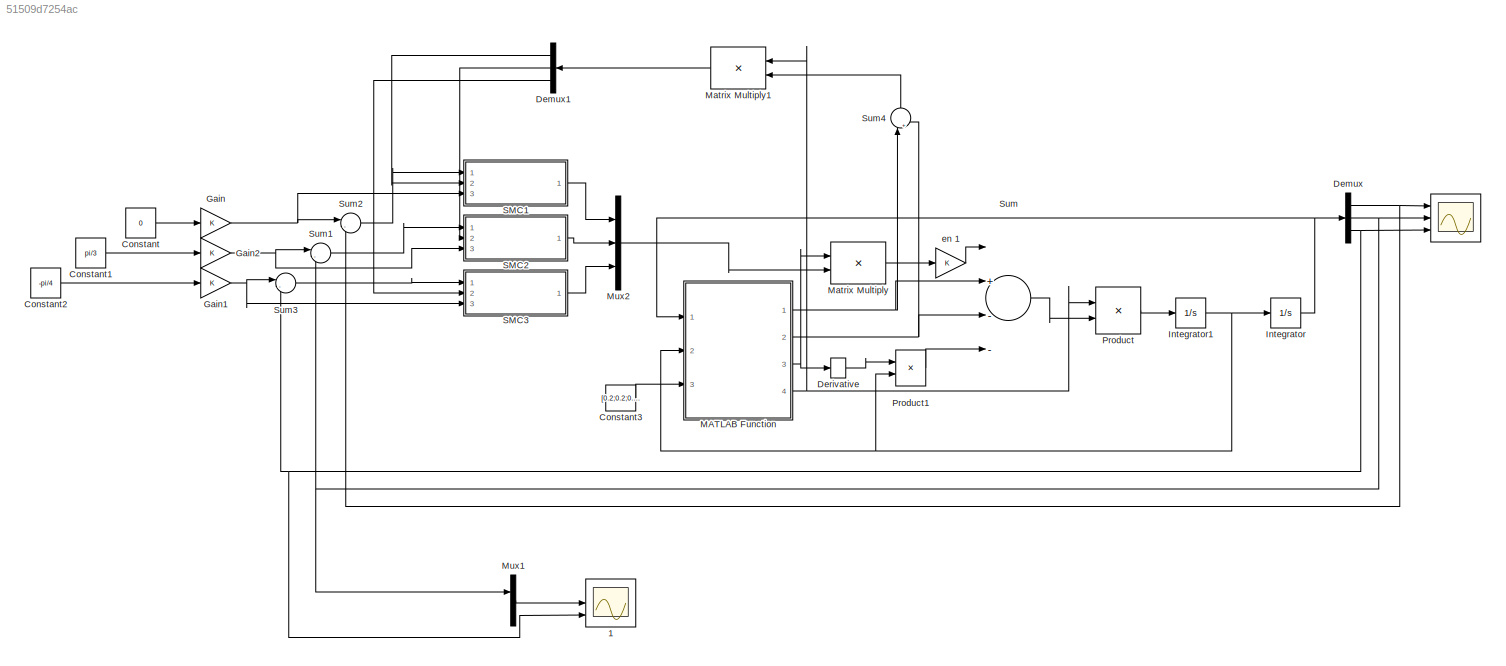
MODEL slx_51509d7254ac
KIND model
CONFIG AbsTol = auto
CONFIG EnableMultiTasking = off
CONFIG FixedStep = 0.01
CONFIG MaxStep = auto
CONFIG MinStep = auto
CONFIG RelTol = 1e-3
CONFIG SampleTimeConstraint = Unconstrained
CONFIG Solver = FixedStepAuto
CONFIG SolverName = FixedStepAuto
CONFIG StartTime = 0.0
CONFIG StopTime = 10.0
BLOCK [Scope]  
  NumInputPorts = 3
  Ports = [3]
  ScopeSpecificationString = Simulink.scopes.TimeScopeBlockCfg('CurrentConfiguration', extmgr.ConfigurationSet(extmgr.Configuration('Core','General UI',true),extmgr.Configuration('Core','Source UI',true),extmgr.Configuration('Sources','WiredSimulink',true,'DataLoggingVariableName','ScopeData1','DataLoggingSaveFormat','Structure'),extmgr.Configuration('Visuals','Time Domain',true,'SerializedDisplays',{struct('MinYLimReal','-1....<+2752ch>
BLOCK [Scope]  1
  NumInputPorts = 3
  Ports = [3]
  ScopeSpecificationString = Simulink.scopes.TimeScopeBlockCfg('CurrentConfiguration', extmgr.ConfigurationSet(extmgr.Configuration('Core','General UI',true),extmgr.Configuration('Core','Source UI',true),extmgr.Configuration('Sources','WiredSimulink',true,'DataLogging',true,'DataLoggingVariableName','ScopeData1','DataLoggingSaveFormat','Structure'),extmgr.Configuration('Visuals','Time Domain',true,'SerializedDisplays',{struct...<+2784ch>
BLOCK [Constant] Constant
  Value = 0
BLOCK [Constant] Constant1
  Value = pi/3
BLOCK [Constant] Constant2
  Value = -pi/4
BLOCK [Constant] Constant3
  Value = [0.2;0.2;0.2]
BLOCK [Demux] Demux
  DisplayOption = bar
  Outputs = 3
  Ports = [1, 3]
BLOCK [Demux] Demux1
  DisplayOption = bar
  Outputs = 3
  Ports = [1, 3]
BLOCK [Derivative] Derivative
BLOCK [Gain] Gain
  OutDataTypeStr = Inherit: Inherit via internal rule
  ParamDataTypeStr = Inherit: Inherit via internal rule
  SaturateOnIntegerOverflow = off
BLOCK [Gain] Gain1
  OutDataTypeStr = Inherit: Inherit via internal rule
  ParamDataTypeStr = Inherit: Inherit via internal rule
  SaturateOnIntegerOverflow = off
BLOCK [Gain] Gain2
  OutDataTypeStr = Inherit: Inherit via internal rule
  ParamDataTypeStr = Inherit: Inherit via internal rule
  SaturateOnIntegerOverflow = off
BLOCK [Integrator] Integrator
  InitialCondition = [0;0;0]
  Ports = [1, 1]
BLOCK [Integrator] Integrator1
  InitialCondition = [0;0;0]
  Ports = [1, 1]
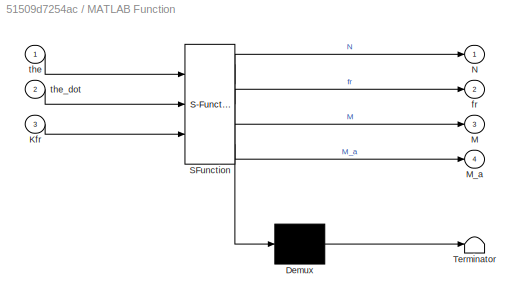
BLOCK [SubSystem] MATLAB Function
  ErrorFcn = Stateflow.Translate.translate
  PermitHierarchicalResolution = ExplicitOnly
  Ports = [3, 4]
  RequestExecContextInheritance = off
  SFBlockType = MATLAB Function
  TreatAsAtomicUnit = on
  Variant = off
BLOCK [Demux] MATLAB Function/ Demux 
  Outputs = 1
  Ports = [1, 1]
BLOCK [S-Function] MATLAB Function/ SFunction 
  EnableBusSupport = on
  FunctionName = sf_sfun
  PortCounts = [3 5]
  Ports = [3, 5]
  SFcnIsStateOwnerBlock = off
  SFunctionDeploymentMode = off
  Tag = Stateflow S-Function Msctest2 2
BLOCK [Terminator] MATLAB Function/ Terminator 
BLOCK [Inport] MATLAB Function/Kfr
  IconDisplay = Port number
  Port = 3
BLOCK [Outport] MATLAB Function/M
  IconDisplay = Port number
  Port = 3
BLOCK [Outport] MATLAB Function/M_a
  IconDisplay = Port number
  Port = 4
BLOCK [Outport] MATLAB Function/N
  IconDisplay = Port number
BLOCK [Outport] MATLAB Function/fr
  IconDisplay = Port number
  Port = 2
BLOCK [Inport] MATLAB Function/the
  IconDisplay = Port number
BLOCK [Inport] MATLAB Function/the_dot
  IconDisplay = Port number
  Port = 2
BLOCK [Product] Matrix Multiply
  InputSameDT = off
  Multiplication = Matrix(*)
  OutDataTypeStr = Inherit: Inherit via internal rule
  Ports = [2, 1]
  RndMeth = Floor
  SaturateOnIntegerOverflow = off
BLOCK [Product] Matrix Multiply1
  InputSameDT = off
  Multiplication = Matrix(*)
  OutDataTypeStr = Inherit: Inherit via internal rule
  Ports = [2, 1]
  RndMeth = Floor
  SaturateOnIntegerOverflow = off
BLOCK [Mux] Mux1
  DisplayOption = bar
  Inputs = 2
  Ports = [2, 1]
BLOCK [Mux] Mux2
  DisplayOption = bar
  Inputs = 3
  Ports = [3, 1]
BLOCK [Product] Product
  InputSameDT = off
  Multiplication = Matrix(*)
  OutDataTypeStr = Inherit: Inherit via internal rule
  Ports = [2, 1]
  RndMeth = Floor
  SaturateOnIntegerOverflow = off
BLOCK [Product] Product1
  InputSameDT = off
  Multiplication = Matrix(*)
  OutDataTypeStr = Inherit: Inherit via internal rule
  Ports = [2, 1]
  RndMeth = Floor
  SaturateOnIntegerOverflow = off
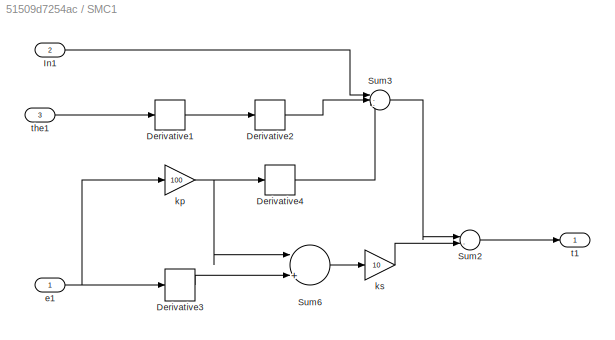
BLOCK [SubSystem] SMC1 
  Ports = [3, 1]
  RequestExecContextInheritance = off
  Variant = off
BLOCK [Derivative] SMC1 /Derivative1
BLOCK [Derivative] SMC1 /Derivative2
BLOCK [Derivative] SMC1 /Derivative3
BLOCK [Derivative] SMC1 /Derivative4
BLOCK [Inport] SMC1 /In1
  IconDisplay = Port number
  Port = 2
BLOCK [Sum] SMC1 /Sum2
  IconShape = round
  InputSameDT = off
  Inputs = |--
  OutDataTypeStr = Inherit: Inherit via internal rule
  Ports = [2, 1]
  SaturateOnIntegerOverflow = off
BLOCK [Sum] SMC1 /Sum3
  IconShape = round
  InputSameDT = off
  Inputs = |--+
  OutDataTypeStr = Inherit: Inherit via internal rule
  Ports = [3, 1]
  SaturateOnIntegerOverflow = off
BLOCK [Sum] SMC1 /Sum6
  InputSameDT = off
  Inputs = |++
  OutDataTypeStr = Inherit: Inherit via internal rule
  Ports = [2, 1]
  SaturateOnIntegerOverflow = off
BLOCK [Inport] SMC1 /e1
  IconDisplay = Port number
BLOCK [Gain] SMC1 /kp
  Gain = 100
  OutDataTypeStr = Inherit: Inherit via internal rule
  ParamDataTypeStr = Inherit: Inherit via internal rule
  SaturateOnIntegerOverflow = off
BLOCK [Gain] SMC1 /ks 
  Gain = 10
  OutDataTypeStr = Inherit: Inherit via internal rule
  ParamDataTypeStr = Inherit: Inherit via internal rule
  SaturateOnIntegerOverflow = off
BLOCK [Outport] SMC1 /t1
  IconDisplay = Port number
BLOCK [Inport] SMC1 /the1
  IconDisplay = Port number
  Port = 3
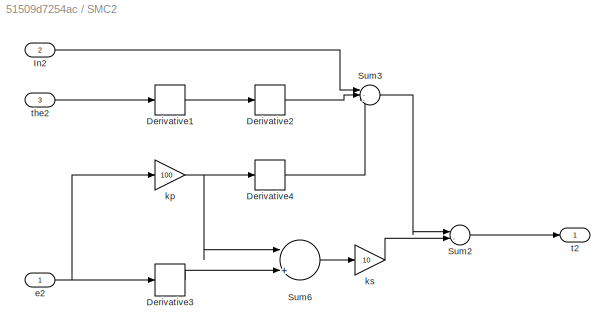
BLOCK [SubSystem] SMC2 
  Ports = [3, 1]
  RequestExecContextInheritance = off
  Variant = off
BLOCK [Derivative] SMC2 /Derivative1
BLOCK [Derivative] SMC2 /Derivative2
BLOCK [Derivative] SMC2 /Derivative3
BLOCK [Derivative] SMC2 /Derivative4
BLOCK [Inport] SMC2 /In2
  IconDisplay = Port number
  Port = 2
BLOCK [Sum] SMC2 /Sum2
  IconShape = round
  InputSameDT = off
  Inputs = |--
  OutDataTypeStr = Inherit: Inherit via internal rule
  Ports = [2, 1]
  SaturateOnIntegerOverflow = off
BLOCK [Sum] SMC2 /Sum3
  IconShape = round
  InputSameDT = off
  Inputs = |--+
  OutDataTypeStr = Inherit: Inherit via internal rule
  Ports = [3, 1]
  SaturateOnIntegerOverflow = off
BLOCK [Sum] SMC2 /Sum6
  InputSameDT = off
  Inputs = |++
  OutDataTypeStr = Inherit: Inherit via internal rule
  Ports = [2, 1]
  SaturateOnIntegerOverflow = off
BLOCK [Inport] SMC2 /e2
  IconDisplay = Port number
BLOCK [Gain] SMC2 /kp
  Gain = 100
  OutDataTypeStr = Inherit: Inherit via internal rule
  ParamDataTypeStr = Inherit: Inherit via internal rule
  SaturateOnIntegerOverflow = off
BLOCK [Gain] SMC2 /ks 
  Gain = 10
  OutDataTypeStr = Inherit: Inherit via internal rule
  ParamDataTypeStr = Inherit: Inherit via internal rule
  SaturateOnIntegerOverflow = off
BLOCK [Outport] SMC2 /t2 
  IconDisplay = Port number
BLOCK [Inport] SMC2 /the2 
  IconDisplay = Port number
  Port = 3
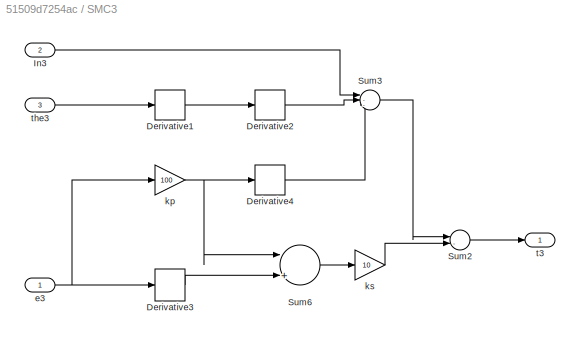
BLOCK [SubSystem] SMC3 
  Ports = [3, 1]
  RequestExecContextInheritance = off
  Variant = off
BLOCK [Derivative] SMC3 /Derivative1
BLOCK [Derivative] SMC3 /Derivative2
BLOCK [Derivative] SMC3 /Derivative3
BLOCK [Derivative] SMC3 /Derivative4
BLOCK [Inport] SMC3 /In3
  IconDisplay = Port number
  Port = 2
BLOCK [Sum] SMC3 /Sum2
  IconShape = round
  InputSameDT = off
  Inputs = |--
  OutDataTypeStr = Inherit: Inherit via internal rule
  Ports = [2, 1]
  SaturateOnIntegerOverflow = off
BLOCK [Sum] SMC3 /Sum3
  IconShape = round
  InputSameDT = off
  Inputs = |--+
  OutDataTypeStr = Inherit: Inherit via internal rule
  Ports = [3, 1]
  SaturateOnIntegerOverflow = off
BLOCK [Sum] SMC3 /Sum6
  InputSameDT = off
  Inputs = |++
  OutDataTypeStr = Inherit: Inherit via internal rule
  Ports = [2, 1]
  SaturateOnIntegerOverflow = off
BLOCK [Inport] SMC3 /e3
  IconDisplay = Port number
BLOCK [Gain] SMC3 /kp
  Gain = 100
  OutDataTypeStr = Inherit: Inherit via internal rule
  ParamDataTypeStr = Inherit: Inherit via internal rule
  SaturateOnIntegerOverflow = off
BLOCK [Gain] SMC3 /ks 
  Gain = 10
  OutDataTypeStr = Inherit: Inherit via internal rule
  ParamDataTypeStr = Inherit: Inherit via internal rule
  SaturateOnIntegerOverflow = off
BLOCK [Outport] SMC3 /t3
  IconDisplay = Port number
BLOCK [Inport] SMC3 /the3 
  IconDisplay = Port number
  Port = 3
BLOCK [Sum] Sum
  InputSameDT = off
  Inputs = |+---
  OutDataTypeStr = Inherit: Inherit via internal rule
  Ports = [4, 1]
  SaturateOnIntegerOverflow = off
BLOCK [Sum] Sum1
  IconShape = round
  InputSameDT = off
  Inputs = |-+
  OutDataTypeStr = Inherit: Inherit via internal rule
  Ports = [2, 1]
  SaturateOnIntegerOverflow = off
BLOCK [Sum] Sum2
  IconShape = round
  InputSameDT = off
  Inputs = |-+
  OutDataTypeStr = Inherit: Inherit via internal rule
  Ports = [2, 1]
  SaturateOnIntegerOverflow = off
BLOCK [Sum] Sum3
  IconShape = round
  InputSameDT = off
  Inputs = |-+
  OutDataTypeStr = Inherit: Inherit via internal rule
  Ports = [2, 1]
  SaturateOnIntegerOverflow = off
BLOCK [Sum] Sum4
  IconShape = round
  InputSameDT = off
  Inputs = |++
  OutDataTypeStr = Inherit: Inherit via internal rule
  Ports = [2, 1]
  SaturateOnIntegerOverflow = off
BLOCK [Gain] en 1
  OutDataTypeStr = Inherit: Inherit via internal rule
  ParamDataTypeStr = Inherit: Inherit via internal rule
  SaturateOnIntegerOverflow = off
LINE Constant1:1 -> Gain2:1
LINE Constant2:1 -> Gain1:1
LINE Constant3:1 -> MATLAB Function:3
LINE Constant:1 -> Gain:1
LINE Demux1:1 -> SMC1 :2
LINE Demux1:2 -> SMC2 :2
LINE Demux1:3 -> SMC3 :2
NET Demux:1 ->  :1, Sum2:2
NET Demux:2 ->  :2, Mux1:1, Sum1:2
NET Demux:3 ->  1:3,  :3, Sum3:2
LINE Derivative:1 -> Product1:1
NET Gain1:1 -> SMC3 :3, Sum3:1
NET Gain2:1 -> SMC2 :3, Sum1:1
NET Gain:1 -> SMC1 :3, Sum2:1
NET Integrator1:1 -> Integrator:1, MATLAB Function:2, Product1:2
NET Integrator:1 -> Demux:1, MATLAB Function:1
NET MATLAB Function:1 -> Sum4:1, Sum:2
NET MATLAB Function:2 -> Sum4:2, Sum:3
NET MATLAB Function:3 -> Derivative:1, Matrix Multiply:1
NET MATLAB Function:4 -> Matrix Multiply1:1, Product:1
LINE Matrix Multiply1:1 -> Demux1:1
LINE Matrix Multiply:1 -> en 1:1
LINE Mux1:1 ->  1:2
LINE Mux2:1 -> Matrix Multiply:2
LINE Product1:1 -> Sum:4
LINE Product:1 -> Integrator1:1
LINE SMC1 /Derivative1:1 -> SMC1 /Derivative2:1
LINE SMC1 /Derivative2:1 -> SMC1 /Sum3:2
LINE SMC1 /Derivative3:1 -> SMC1 /Sum6:2
LINE SMC1 /Derivative4:1 -> SMC1 /Sum3:3
LINE SMC1 /In1:1 -> SMC1 /Sum3:1
LINE SMC1 /Sum2:1 -> SMC1 /t1:1
LINE SMC1 /Sum3:1 -> SMC1 /Sum2:1
LINE SMC1 /Sum6:1 -> SMC1 /ks :1
NET SMC1 /e1:1 -> SMC1 /Derivative3:1, SMC1 /kp:1
NET SMC1 /kp:1 -> SMC1 /Derivative4:1, SMC1 /Sum6:1
LINE SMC1 /ks :1 -> SMC1 /Sum2:2
LINE SMC1 /the1:1 -> SMC1 /Derivative1:1
LINE SMC1 :1 -> Mux2:1
LINE SMC2 /Derivative1:1 -> SMC2 /Derivative2:1
LINE SMC2 /Derivative2:1 -> SMC2 /Sum3:2
LINE SMC2 /Derivative3:1 -> SMC2 /Sum6:2
LINE SMC2 /Derivative4:1 -> SMC2 /Sum3:3
LINE SMC2 /In2:1 -> SMC2 /Sum3:1
LINE SMC2 /Sum2:1 -> SMC2 /t2 :1
LINE SMC2 /Sum3:1 -> SMC2 /Sum2:1
LINE SMC2 /Sum6:1 -> SMC2 /ks :1
NET SMC2 /e2:1 -> SMC2 /Derivative3:1, SMC2 /kp:1
NET SMC2 /kp:1 -> SMC2 /Derivative4:1, SMC2 /Sum6:1
LINE SMC2 /ks :1 -> SMC2 /Sum2:2
LINE SMC2 /the2 :1 -> SMC2 /Derivative1:1
LINE SMC2 :1 -> Mux2:2
LINE SMC3 /Derivative1:1 -> SMC3 /Derivative2:1
LINE SMC3 /Derivative2:1 -> SMC3 /Sum3:2
LINE SMC3 /Derivative3:1 -> SMC3 /Sum6:2
LINE SMC3 /Derivative4:1 -> SMC3 /Sum3:3
LINE SMC3 /In3:1 -> SMC3 /Sum3:1
LINE SMC3 /Sum2:1 -> SMC3 /t3:1
LINE SMC3 /Sum3:1 -> SMC3 /Sum2:1
LINE SMC3 /Sum6:1 -> SMC3 /ks :1
NET SMC3 /e3:1 -> SMC3 /Derivative3:1, SMC3 /kp:1
NET SMC3 /kp:1 -> SMC3 /Derivative4:1, SMC3 /Sum6:1
LINE SMC3 /ks :1 -> SMC3 /Sum2:2
LINE SMC3 /the3 :1 -> SMC3 /Derivative1:1
LINE SMC3 :1 -> Mux2:3
LINE Sum1:1 -> SMC2 :1
LINE Sum2:1 -> SMC1 :1
LINE Sum3:1 -> SMC3 :1
LINE Sum4:1 -> Matrix Multiply1:2
LINE Sum:1 -> Product:2
LINE en 1:1 -> Sum:1
note: NET lines group one-source signal fan-out (src -> all destinations, sorted); 1:1 wires keep LINE
CHART MATLAB Function states=1 transitions=1
  STATE_LABEL 'eML_blk_kernel()'
  STATE_LABEL 'SCRIPT:\nfunction [N,fr,M,M_a] = fcn(the,the_dot,Kfr)\nthe1=the(1); the2=the(2); the3=the(3);\nL1 = 0.2; L2 = 0.5 ; L3= 0.5; %Link length\nm1 = 2 ; m2 = 0.3 ; m3 =0.1 ; %Link mass\n%clc\n%clear all;\n%syms m1 m2 m3 L2 L3 the1 the2 the3 L1 the1_dot the2_dot the3_dot ;\n%the_dot = [the1_dot; the2_dot;the3_dot];\n%%%%%%%%%%%%%%%%%%%%%%%%%%%%%%%%%%%%%\n\n%TINH JACOBIAN CHO DIEM m1\n%P_0_m1 = [ 0; 0; L1];\n\n%DAO HA...<+3608ch>'
